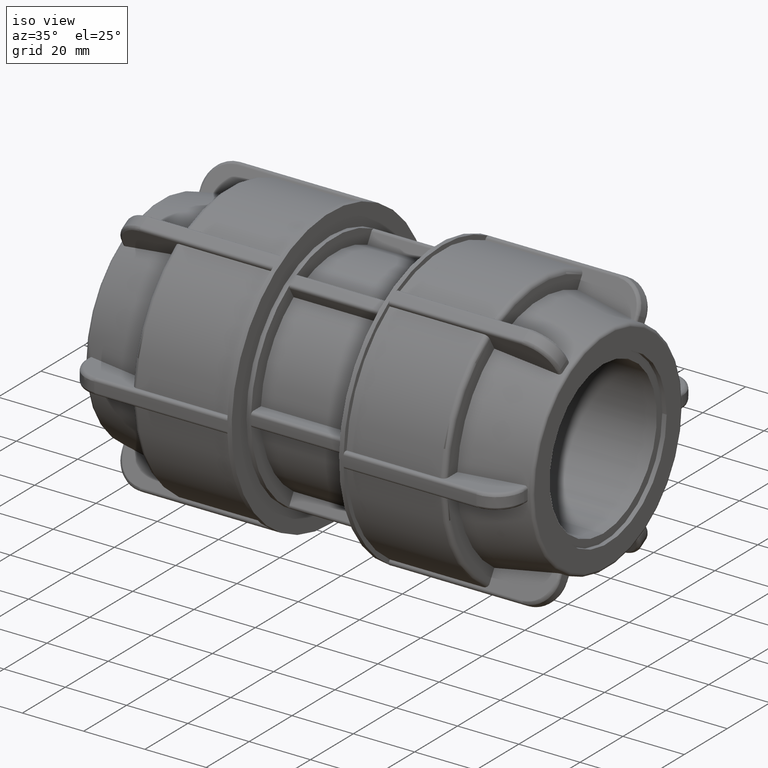
[diagram: clean part render]
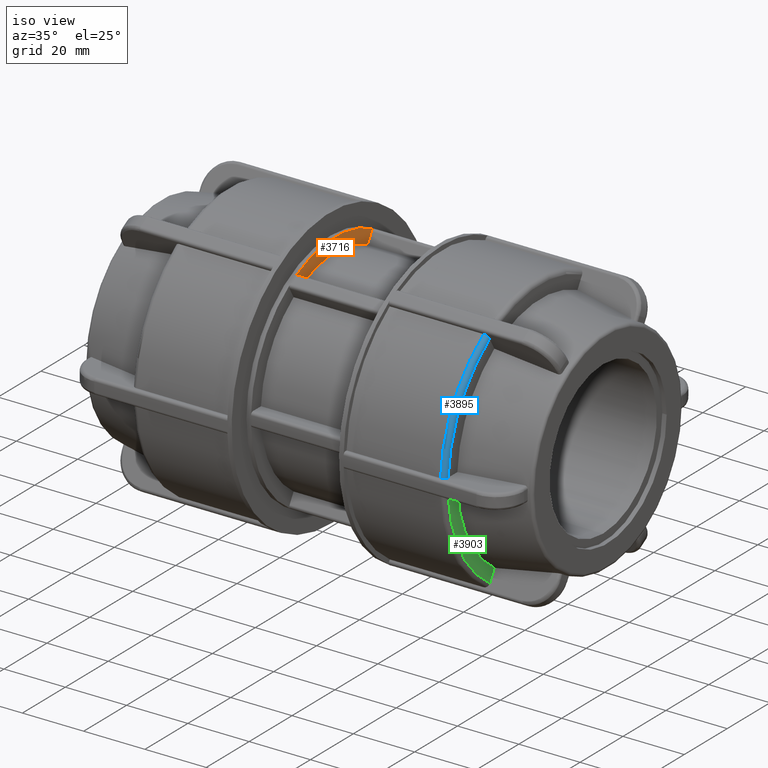
[diagram: same view with three faces highlighted in distinct colors, each labeled with its STEP entity id]
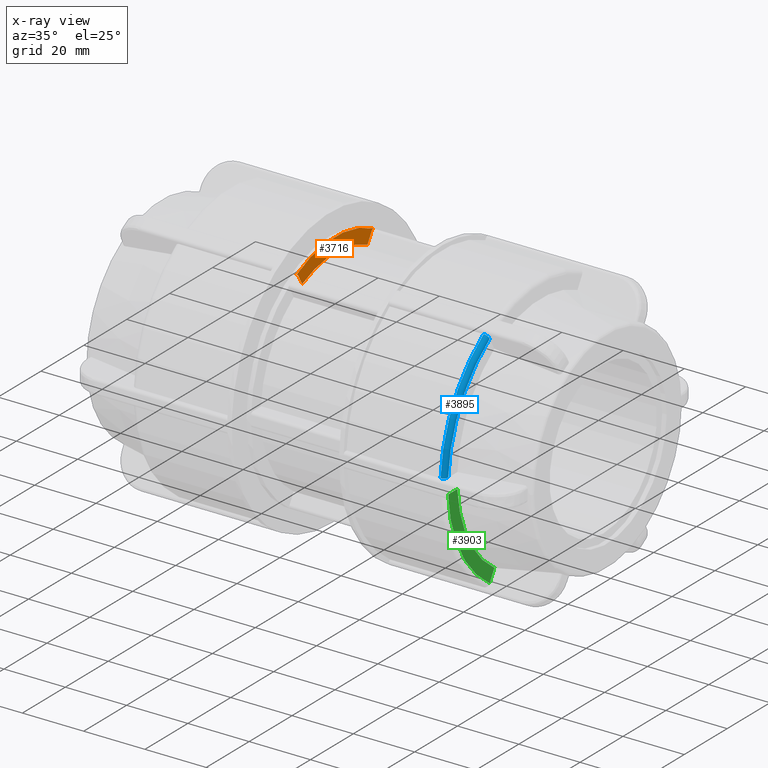
[diagram: x-ray of the same camera — body ghosted, the three highlighted faces saturated]
A machine part, iso view with three faces highlighted in distinct colors.
The next image is the same camera in x-ray (body ghosted, the three faces saturated) — at least one of them is partly hidden behind the body in this view.
Their STEP definitions:

[orange] entity #3716 — the highlighted planar face has unit normal (-1, -0, 0).
#227=PLANE('',#3987);
#330=FACE_OUTER_BOUND('',#567,.T.);
#567=EDGE_LOOP('',(#2571,#2572,#2573,#2574,#2575,#2576));
#795=LINE('',#5488,#1023);
#831=LINE('',#5625,#1059);
#1023=VECTOR('',#4377,3.73180413180276);
#1059=VECTOR('',#4509,3.73180413180275);
#1248=CIRCLE('',#3925,0.92);
#1252=CIRCLE('',#3932,39.1);
#1268=CIRCLE('',#3951,0.92);
#1286=CIRCLE('',#3988,34.5);
#1483=VERTEX_POINT('',#5478);
#1484=VERTEX_POINT('',#5480);
#1486=VERTEX_POINT('',#5486);
#1492=VERTEX_POINT('',#5501);
#1518=VERTEX_POINT('',#5560);
#1539=VERTEX_POINT('',#5624);
#1861=EDGE_CURVE('',#1483,#1484,#1248,.F.);
#1865=EDGE_CURVE('',#1483,#1486,#795,.T.);
#1871=EDGE_CURVE('',#1492,#1484,#1252,.T.);
#1901=EDGE_CURVE('',#1492,#1518,#1268,.F.);
#1933=EDGE_CURVE('',#1539,#1518,#831,.T.);
#1951=EDGE_CURVE('',#1539,#1486,#1286,.T.);
#2571=ORIENTED_EDGE('',*,*,#1865,.T.);
#2572=ORIENTED_EDGE('',*,*,#1951,.F.);
#2573=ORIENTED_EDGE('',*,*,#1933,.T.);
#2574=ORIENTED_EDGE('',*,*,#1901,.F.);
#2575=ORIENTED_EDGE('',*,*,#1871,.T.);
#2576=ORIENTED_EDGE('',*,*,#1861,.F.);
#3716=ADVANCED_FACE('',(#330),#227,.F.);
#3925=AXIS2_PLACEMENT_3D('',#5481,#4370,#4371);
#3932=AXIS2_PLACEMENT_3D('',#5502,#4390,#4391);
#3951=AXIS2_PLACEMENT_3D('',#5561,#4442,#4443);
#3987=AXIS2_PLACEMENT_3D('',#5659,#4546,#4547);
#3988=AXIS2_PLACEMENT_3D('',#5660,#4548,#4549);
#4370=DIRECTION('center_axis',(-1.,-3.06161699786838E-16,0.));
#4371=DIRECTION('ref_axis',(0.,0.276236104875733,0.9610898055661));
#4377=DIRECTION('',(-1.53080849893419E-16,0.499999999999999,-0.866025403784439));
#4390=DIRECTION('center_axis',(1.,3.06161699786838E-16,0.));
#4391=DIRECTION('ref_axis',(0.,0.,-1.));
#4442=DIRECTION('center_axis',(-1.,-3.06161699786838E-16,0.));
#4443=DIRECTION('ref_axis',(0.,-0.276236104875731,0.9610898055661));
#4509=DIRECTION('',(-1.53080849893419E-16,0.5,0.866025403784438));
#4546=DIRECTION('center_axis',(-1.,-3.06161699786838E-16,0.));
#4547=DIRECTION('ref_axis',(0.,0.,1.));
#4548=DIRECTION('center_axis',(1.,3.06161699786838E-16,0.));
#4549=DIRECTION('ref_axis',(0.,0.,-1.));
#5478=CARTESIAN_POINT('',(-16.06,-17.0856676163573,34.1932443927651));
#5480=CARTESIAN_POINT('',(-16.06,-18.3133124574254,34.5460936552414));
#5481=CARTESIAN_POINT('Origin',(-16.06,-17.882410987839,33.7332443927651));
#5486=CARTESIAN_POINT('',(-16.06,-15.2197655504559,30.9614072126762));
#5488=CARTESIAN_POINT('',(-16.06,-2.87871515167016,9.58608090321105));
#5501=CARTESIAN_POINT('',(-16.06,18.3133124574255,34.5460936552413));
#5502=CARTESIAN_POINT('Origin',(-16.06,-4.91695689857662E-15,0.));
#5560=CARTESIAN_POINT('',(-16.06,17.0856676163573,34.1932443927651));
#5561=CARTESIAN_POINT('Origin',(-16.06,17.882410987839,33.7332443927651));
#5624=CARTESIAN_POINT('',(-16.06,15.2197655504559,30.9614072126762));
#5625=CARTESIAN_POINT('',(-16.06,11.5014535608759,24.521101928331));
#5659=CARTESIAN_POINT('Origin',(-16.06,39.1,0.));
#5660=CARTESIAN_POINT('Origin',(-16.06,-4.91695689857663E-15,0.));

[blue] entity #3895 — the highlighted toroidal blend (fillet) surface has major radius 43.16 mm and minor (blend) radius 1.46 mm.
#37=TOROIDAL_SURFACE('',#4320,43.16,1.46);
#142=B_SPLINE_CURVE_WITH_KNOTS('',3,(#7609,#7610,#7611,#7612,#7613,#7614,
#7615,#7616,#7617,#7618),.UNSPECIFIED.,.F.,.F.,(4,2,2,2,4),(-0.216397312035066,
-0.162223664148742,-0.108098313662019,-0.0540274345760987,0.),
 .UNSPECIFIED.);
#152=B_SPLINE_CURVE_WITH_KNOTS('',3,(#7837,#7838,#7839,#7840,#7841,#7842,
#7843,#7844,#7845,#7846),.UNSPECIFIED.,.F.,.F.,(4,2,2,2,4),(0.,0.0540274345760968,
0.108098313662017,0.162223664148743,0.216397312035066),.UNSPECIFIED.);
#509=FACE_OUTER_BOUND('',#761,.T.);
#761=EDGE_LOOP('',(#3464,#3465,#3466,#3467));
#1456=CIRCLE('',#4309,44.62);
#1462=CIRCLE('',#4321,43.16);
#1796=VERTEX_POINT('',#7606);
#1797=VERTEX_POINT('',#7608);
#1824=VERTEX_POINT('',#7834);
#1825=VERTEX_POINT('',#7836);
#2330=EDGE_CURVE('',#1797,#1796,#142,.T.);
#2370=EDGE_CURVE('',#1825,#1824,#152,.T.);
#2397=EDGE_CURVE('',#1796,#1825,#1456,.T.);
#2405=EDGE_CURVE('',#1824,#1797,#1462,.T.);
#3464=ORIENTED_EDGE('',*,*,#2370,.T.);
#3465=ORIENTED_EDGE('',*,*,#2405,.T.);
#3466=ORIENTED_EDGE('',*,*,#2330,.T.);
#3467=ORIENTED_EDGE('',*,*,#2397,.T.);
#3895=ADVANCED_FACE('',(#509),#37,.T.);
#4309=AXIS2_PLACEMENT_3D('',#7923,#5356,#5357);
#4320=AXIS2_PLACEMENT_3D('',#7947,#5379,#5380);
#4321=AXIS2_PLACEMENT_3D('',#7948,#5381,#5382);
#5356=DIRECTION('center_axis',(1.,3.06161699786838E-16,0.));
#5357=DIRECTION('ref_axis',(3.04801256200318E-16,-1.,1.83697019872103E-16));
#5379=DIRECTION('center_axis',(1.,3.06161699786838E-16,0.));
#5380=DIRECTION('ref_axis',(0.,0.,-1.));
#5381=DIRECTION('center_axis',(-1.,-3.06161699786838E-16,0.));
#5382=DIRECTION('ref_axis',(3.06161699786838E-16,-1.,1.83697019872103E-16));
#7606=CARTESIAN_POINT('',(49.64,-24.4400180548692,37.3313530089343));
#7608=CARTESIAN_POINT('',(51.1,-23.7088305895239,36.0648991690987));
#7609=CARTESIAN_POINT('Ctrl Pts',(51.1,-23.7088305895239,36.0648991690987));
#7610=CARTESIAN_POINT('Ctrl Pts',(51.1,-23.7991200026678,36.2212850200494));
#7611=CARTESIAN_POINT('Ctrl Pts',(51.0577761184352,-23.9053905181349,36.405350952185));
#7612=CARTESIAN_POINT('Ctrl Pts',(50.9197401615621,-24.0721723097363,36.694225489016));
#7613=CARTESIAN_POINT('Ctrl Pts',(50.7995595234617,-24.1622132327529,36.8501809424412));
#7614=CARTESIAN_POINT('Ctrl Pts',(50.5446615656108,-24.2897851829445,37.0711420417936));
#7615=CARTESIAN_POINT('Ctrl Pts',(50.3648942520846,-24.3499147772171,37.1752895541123));
#7616=CARTESIAN_POINT('Ctrl Pts',(50.0320394097568,-24.4189142593222,37.2948001628143));
#7617=CARTESIAN_POINT('Ctrl Pts',(49.820091448587,-24.4400180548692,37.3313530089343));
#7618=CARTESIAN_POINT('Ctrl Pts',(49.64,-24.4400180548692,37.3313530089343));
#7834=CARTESIAN_POINT('',(51.1,-43.0875341601257,2.50000000000001));
#7836=CARTESIAN_POINT('',(49.64,-44.5499090908163,2.50000000000001));
#7837=CARTESIAN_POINT('Ctrl Pts',(49.64,-44.5499090908163,2.50000000000001));
#7838=CARTESIAN_POINT('Ctrl Pts',(49.820091448587,-44.5499090908163,2.50000000000001));
#7839=CARTESIAN_POINT('Ctrl Pts',(50.0320394097568,-44.5077014997223,2.50000000000001));
#7840=CARTESIAN_POINT('Ctrl Pts',(50.3648942520846,-44.3697025355121,2.50000000000001));
#7841=CARTESIAN_POINT('Ctrl Pts',(50.5446615656108,-44.2494433469668,2.50000000000001));
#7842=CARTESIAN_POINT('Ctrl Pts',(50.7995595234617,-43.9942994465837,2.50000000000001));
#7843=CARTESIAN_POINT('Ctrl Pts',(50.9197401615621,-43.8142176005505,2.50000000000001));
#7844=CARTESIAN_POINT('Ctrl Pts',(51.0577761184352,-43.4806540173476,2.50000000000001));
#7845=CARTESIAN_POINT('Ctrl Pts',(51.1,-43.2681129864134,2.50000000000001));
#7846=CARTESIAN_POINT('Ctrl Pts',(51.1,-43.0875341601257,2.50000000000001));
#7923=CARTESIAN_POINT('Origin',(49.64,1.51978667774187E-14,0.));
#7947=CARTESIAN_POINT('Origin',(49.64,1.51978667774187E-14,0.));
#7948=CARTESIAN_POINT('Origin',(51.1,1.56448628591074E-14,0.));

[green] entity #3903 — the highlighted planar face has unit normal (1, 0, 0).
#297=PLANE('',#4340);
#517=FACE_OUTER_BOUND('',#770,.T.);
#770=EDGE_LOOP('',(#3529,#3530,#3531,#3532));
#973=LINE('',#7457,#1201);
#995=LINE('',#7814,#1223);
#1201=VECTOR('',#5205,4.30647030369141);
#1223=VECTOR('',#5291,4.30647030369141);
#1463=CIRCLE('',#4323,43.16);
#1471=CIRCLE('',#4334,38.8615608775154);
#1781=VERTEX_POINT('',#7445);
#1782=VERTEX_POINT('',#7456);
#1819=VERTEX_POINT('',#7809);
#1820=VERTEX_POINT('',#7813);
#2306=EDGE_CURVE('',#1782,#1781,#973,.T.);
#2364=EDGE_CURVE('',#1820,#1819,#995,.T.);
#2406=EDGE_CURVE('',#1820,#1781,#1463,.T.);
#2419=EDGE_CURVE('',#1782,#1819,#1471,.T.);
#3529=ORIENTED_EDGE('',*,*,#2364,.T.);
#3530=ORIENTED_EDGE('',*,*,#2419,.F.);
#3531=ORIENTED_EDGE('',*,*,#2306,.T.);
#3532=ORIENTED_EDGE('',*,*,#2406,.F.);
#3903=ADVANCED_FACE('',(#517),#297,.T.);
#4323=AXIS2_PLACEMENT_3D('',#7950,#5385,#5386);
#4334=AXIS2_PLACEMENT_3D('',#8010,#5407,#5408);
#4340=AXIS2_PLACEMENT_3D('',#8018,#5420,#5421);
#5205=DIRECTION('',(3.06161699786838E-16,-1.,3.33066907387547E-16));
#5291=DIRECTION('',(-1.53080849893419E-16,0.500000000000001,0.866025403784438));
#5385=DIRECTION('center_axis',(-1.,-3.06161699786838E-16,0.));
#5386=DIRECTION('ref_axis',(3.06161699786838E-16,-1.,1.83697019872103E-16));
#5407=DIRECTION('center_axis',(1.,3.06161699786838E-16,0.));
#5408=DIRECTION('ref_axis',(0.,0.,-1.));
#5420=DIRECTION('center_axis',(1.,3.06161699786838E-16,0.));
#5421=DIRECTION('ref_axis',(0.,0.,-1.));
#7445=CARTESIAN_POINT('',(51.1,-43.0875341601257,-2.49999999999999));
#7456=CARTESIAN_POINT('',(51.1,-38.7810638564343,-2.49999999999999));
#7457=CARTESIAN_POINT('',(51.1,-3.53522705057313,-2.5));
#7809=CARTESIAN_POINT('',(51.1,-21.5555954376782,-32.3353864854586));
#7813=CARTESIAN_POINT('',(51.1,-23.708830589524,-36.0648991690986));
#7814=CARTESIAN_POINT('',(51.1,-0.113611439852106,4.80321921385506));
#7950=CARTESIAN_POINT('Origin',(51.1,1.56448628591074E-14,0.));
#8010=CARTESIAN_POINT('Origin',(51.1,1.56448628591074E-14,0.));
#8018=CARTESIAN_POINT('Origin',(51.1,38.8615608775154,0.));